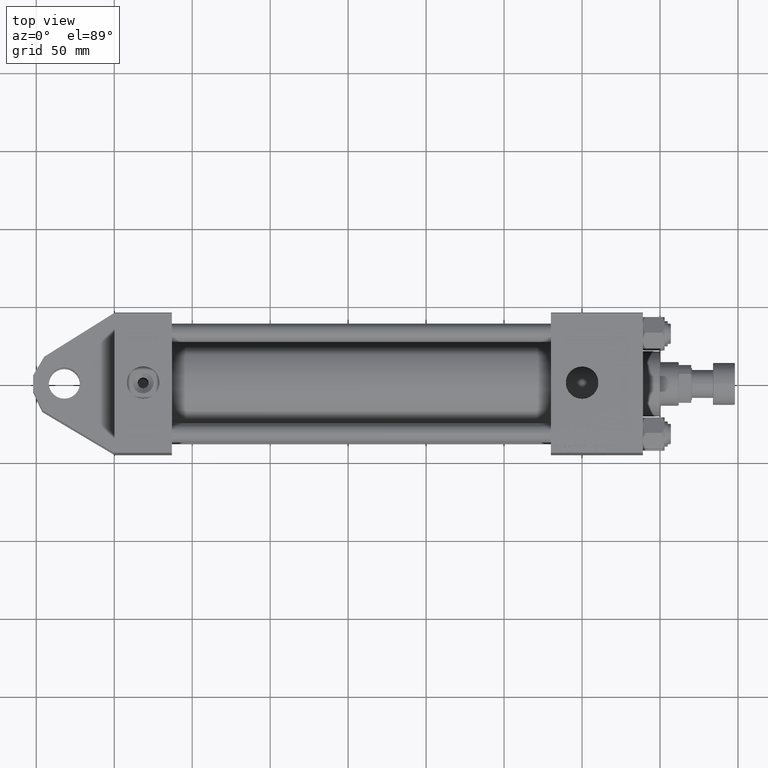
[diagram: clean part render]
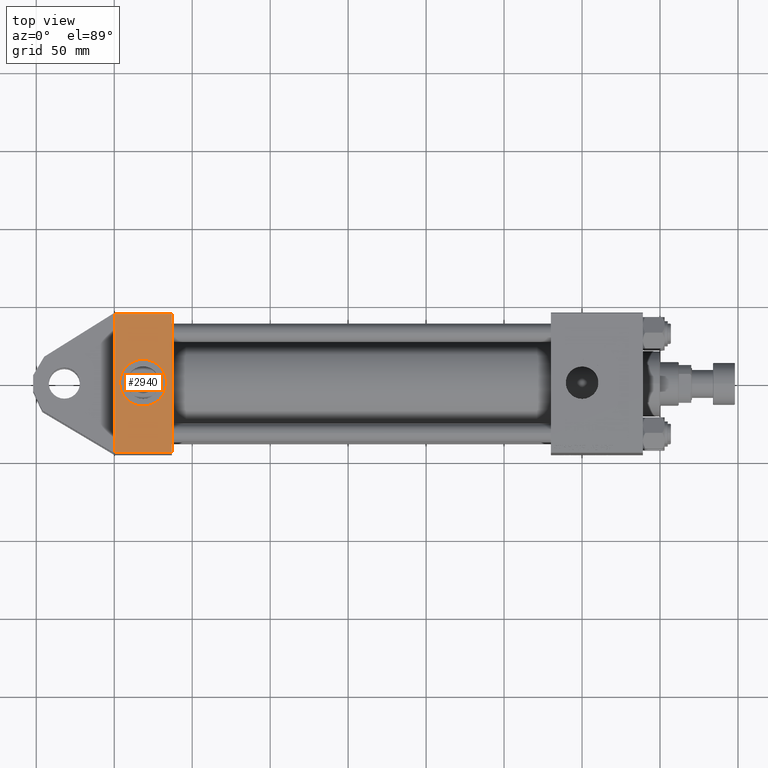
[diagram: same view with one face highlighted and labeled with its STEP entity id]
A machine part, top view. The second image highlights one B-rep face of the part: STEP entity #2940.
In plain terms, the highlighted planar face has unit normal (0, 0, -1).
Its self-contained STEP definition (entity closure, byte-faithful):
#1292 = EDGE_CURVE ( 'NONE', #15089, #11171, #28534, .T. ) ;
#2940 = ADVANCED_FACE ( 'NONE', ( #16336, #20810 ), #12627, .F. ) ;
#4861 = EDGE_LOOP ( 'NONE', ( #45570, #19696, #14055, #13050 ) ) ;
#5250 = DIRECTION ( 'NONE',  ( -1.000000000000000000, 0.000000000000000000, 0.000000000000000000 ) ) ;
#5347 = VECTOR ( 'NONE', #30961, 1000.000000000000000 ) ;
#6349 = VECTOR ( 'NONE', #40081, 1000.000000000000000 ) ;
#6659 = LINE ( 'NONE', #38872, #5347 ) ;
#6669 = CARTESIAN_POINT ( 'NONE',  ( 37.00000000000000000, -45.00000000000000711, 44.49999999999997158 ) ) ;
#8708 = CIRCLE ( 'NONE', #10373, 15.00000000000000178 ) ;
#9129 = DIRECTION ( 'NONE',  ( 0.000000000000000000, 0.000000000000000000, -1.000000000000000000 ) ) ;
#9217 = LINE ( 'NONE', #41444, #32142 ) ;
#10373 = AXIS2_PLACEMENT_3D ( 'NONE', #17848, #33961, #9129 ) ;
#11094 = CARTESIAN_POINT ( 'NONE',  ( 18.50000000000000355, -45.00000000000000000, 14.99999999999999822 ) ) ;
#11171 = VERTEX_POINT ( 'NONE', #11094 ) ;
#12434 = EDGE_CURVE ( 'NONE', #21992, #28807, #9217, .T. ) ;
#12627 = PLANE ( 'NONE',  #37847 ) ;
#13050 = ORIENTED_EDGE ( 'NONE', *, *, #12434, .T. ) ;
#13092 = CARTESIAN_POINT ( 'NONE',  ( 0.000000000000000000, -45.00000000000000000, -44.49999999999995737 ) ) ;
#14055 = ORIENTED_EDGE ( 'NONE', *, *, #28151, .F. ) ;
#14277 = CARTESIAN_POINT ( 'NONE',  ( 0.000000000000000000, -45.00000000000000711, 44.49999999999997158 ) ) ;
#14582 = CARTESIAN_POINT ( 'NONE',  ( 18.50000000000000000, -45.00000000000000000, -15.00000000000000533 ) ) ;
#15089 = VERTEX_POINT ( 'NONE', #14582 ) ;
#16336 = FACE_BOUND ( 'NONE', #26345, .T. ) ;
#17848 = CARTESIAN_POINT ( 'NONE',  ( 18.50000000000000000, -45.00000000000000000, -3.469446951953614978E-15 ) ) ;
#19696 = ORIENTED_EDGE ( 'NONE', *, *, #45602, .T. ) ;
#20734 = VERTEX_POINT ( 'NONE', #13092 ) ;
#20810 = FACE_OUTER_BOUND ( 'NONE', #4861, .T. ) ;
#21992 = VERTEX_POINT ( 'NONE', #6669 ) ;
#22405 = EDGE_CURVE ( 'NONE', #28807, #20734, #31636, .T. ) ;
#25166 = VERTEX_POINT ( 'NONE', #28100 ) ;
#26345 = EDGE_LOOP ( 'NONE', ( #32627, #51001 ) ) ;
#28100 = CARTESIAN_POINT ( 'NONE',  ( 37.00000000000000000, -45.00000000000000000, -44.49999999999995737 ) ) ;
#28151 = EDGE_CURVE ( 'NONE', #21992, #25166, #30014, .T. ) ;
#28230 = DIRECTION ( 'NONE',  ( -0.000000000000000000, 1.000000000000000000, 7.709882115452478166E-17 ) ) ;
#28534 = CIRCLE ( 'NONE', #41195, 15.00000000000000178 ) ;
#28807 = VERTEX_POINT ( 'NONE', #14277 ) ;
#29483 = DIRECTION ( 'NONE',  ( 0.000000000000000000, 7.709882115452476934E-17, -1.000000000000000000 ) ) ;
#30014 = LINE ( 'NONE', #46386, #48689 ) ;
#30961 = DIRECTION ( 'NONE',  ( 1.000000000000000000, 0.000000000000000000, 0.000000000000000000 ) ) ;
#31636 = LINE ( 'NONE', #43264, #6349 ) ;
#31931 = DIRECTION ( 'NONE',  ( 0.000000000000000000, -7.709882115452478166E-17, 1.000000000000000000 ) ) ;
#32142 = VECTOR ( 'NONE', #5250, 1000.000000000000000 ) ;
#32446 = CARTESIAN_POINT ( 'NONE',  ( 37.00000000000000000, -45.00000000000000711, 45.00000000000000000 ) ) ;
#32627 = ORIENTED_EDGE ( 'NONE', *, *, #1292, .F. ) ;
#33961 = DIRECTION ( 'NONE',  ( 0.000000000000000000, -1.000000000000000000, -8.673617379884036705E-17 ) ) ;
#37847 = AXIS2_PLACEMENT_3D ( 'NONE', #32446, #28230, #31931 ) ;
#37900 = CARTESIAN_POINT ( 'NONE',  ( 18.50000000000000000, -45.00000000000000000, -3.469446951953614978E-15 ) ) ;
#38872 = CARTESIAN_POINT ( 'NONE',  ( 37.00000000000000000, -45.00000000000000000, -44.49999999999998579 ) ) ;
#40081 = DIRECTION ( 'NONE',  ( 0.000000000000000000, 7.709882115452476934E-17, -1.000000000000000000 ) ) ;
#41195 = AXIS2_PLACEMENT_3D ( 'NONE', #37900, #42131, #42911 ) ;
#41444 = CARTESIAN_POINT ( 'NONE',  ( 37.00000000000000000, -45.00000000000000711, 44.49999999999997158 ) ) ;
#42131 = DIRECTION ( 'NONE',  ( 0.000000000000000000, -1.000000000000000000, -8.673617379884036705E-17 ) ) ;
#42911 = DIRECTION ( 'NONE',  ( 0.000000000000000000, 0.000000000000000000, -1.000000000000000000 ) ) ;
#43264 = CARTESIAN_POINT ( 'NONE',  ( 0.000000000000000000, -45.00000000000000711, 45.00000000000000000 ) ) ;
#45166 = EDGE_CURVE ( 'NONE', #11171, #15089, #8708, .T. ) ;
#45570 = ORIENTED_EDGE ( 'NONE', *, *, #22405, .T. ) ;
#45602 = EDGE_CURVE ( 'NONE', #20734, #25166, #6659, .T. ) ;
#46386 = CARTESIAN_POINT ( 'NONE',  ( 37.00000000000000000, -45.00000000000000711, 45.00000000000000000 ) ) ;
#48689 = VECTOR ( 'NONE', #29483, 1000.000000000000000 ) ;
#51001 = ORIENTED_EDGE ( 'NONE', *, *, #45166, .F. ) ;